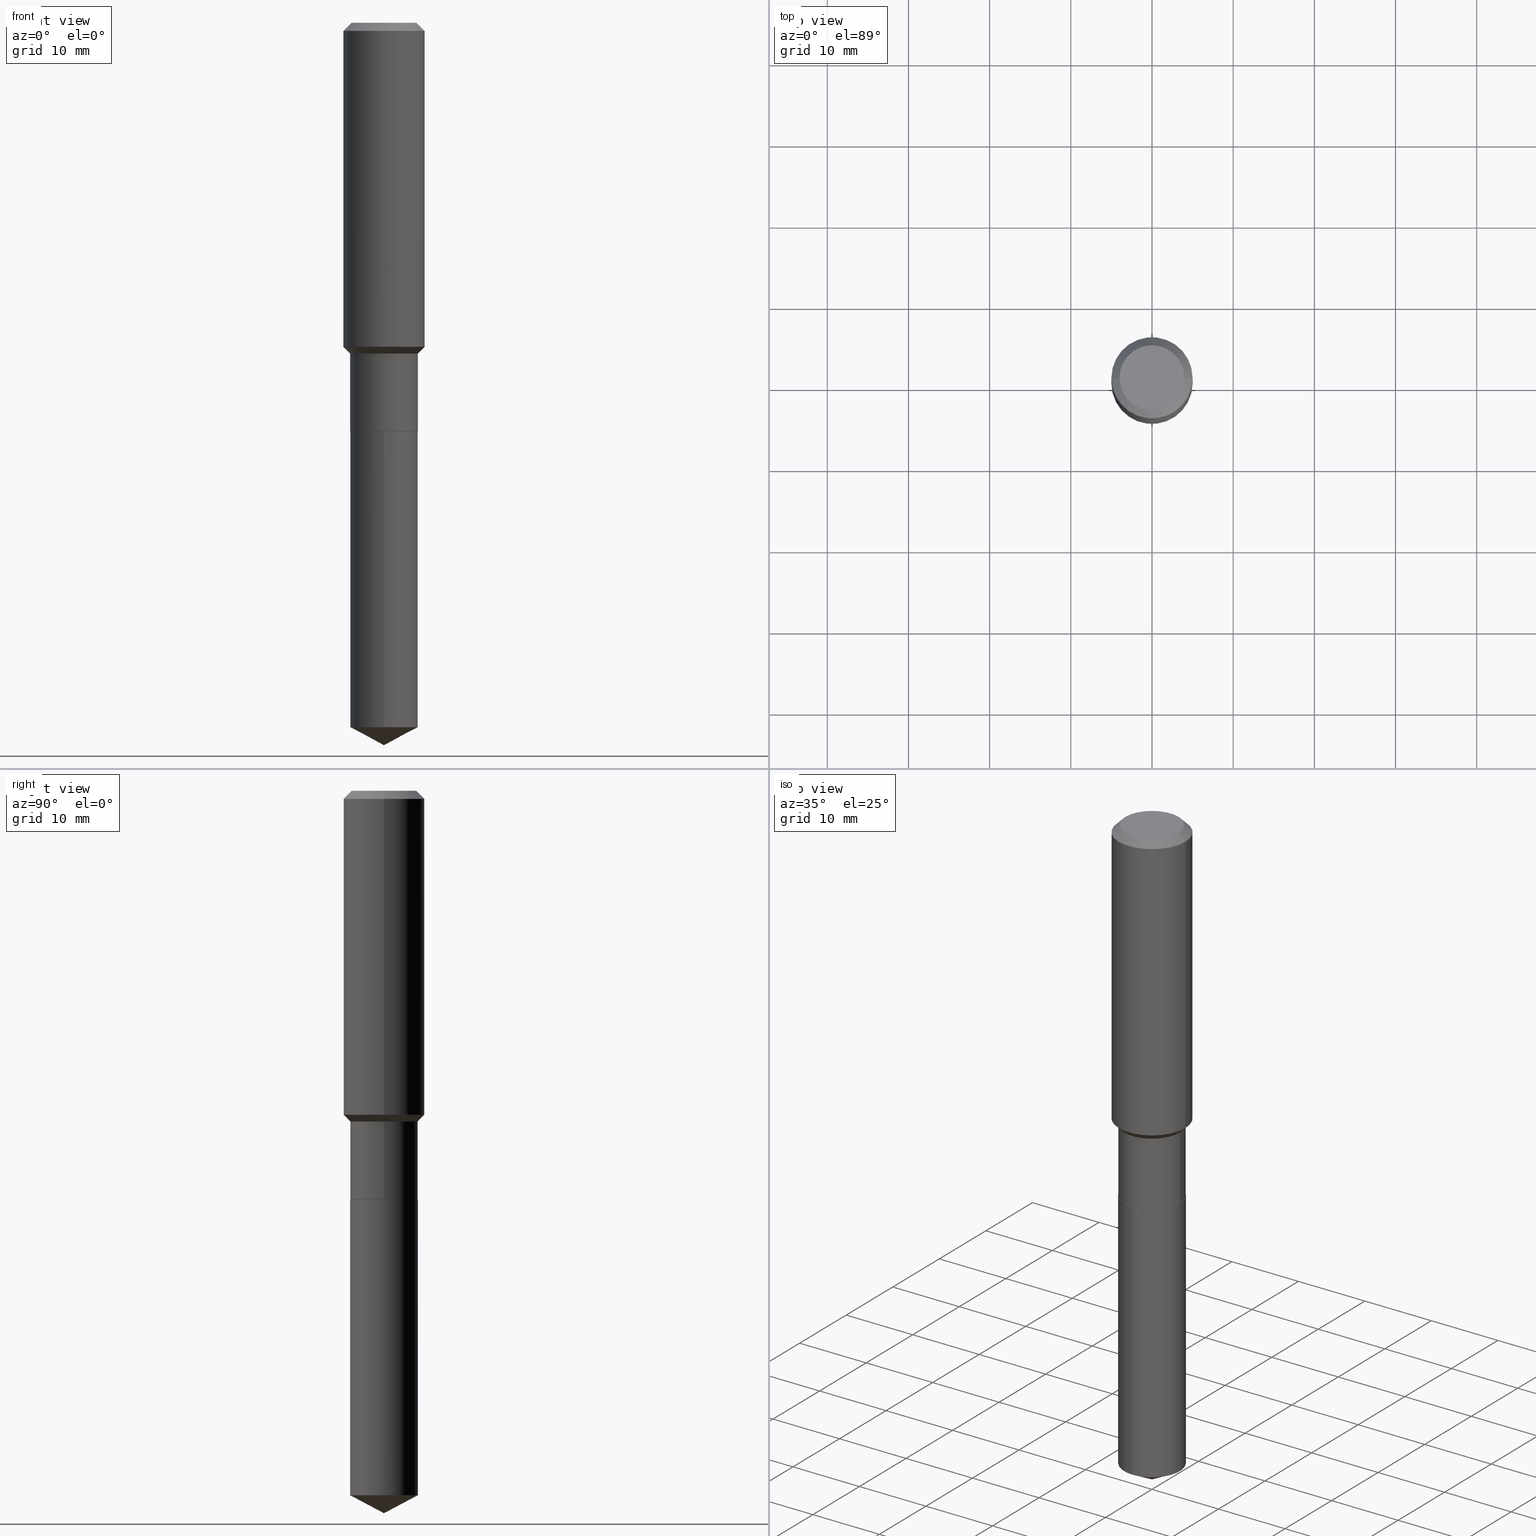
[diagram: canonical four-view strip — front | top / right | iso, engineering-drawing reading convention]
A machine part, canonical four-view strip (front | top / right | iso — engineering-drawing reading convention). The complete STEP part file that produces these views, byte-faithful:
ISO-10303-21;
HEADER;
FILE_DESCRIPTION (( 'STEP AP203' ),
    '1' );
FILE_NAME ('54616.STEP',
    '2024-04-24T15:08:47',
    ( '' ),
    ( '' ),
    'SwSTEP 2.0',
    'SolidWorks 2023',
    '' );
FILE_SCHEMA (( 'CONFIG_CONTROL_DESIGN' ));
ENDSEC;

DATA;
#1 = DIRECTION ( 'NONE',  ( -2.445609389385377886E-29, 3.491280015698900984E-15, 1.000000000000000000 ) ) ;
#2 = CIRCLE ( 'NONE', #350, 0.1968500000000001915 ) ;
#3 = ORIENTED_EDGE ( 'NONE', *, *, #381, .F. ) ;
#4 = VERTEX_POINT ( 'NONE', #327 ) ;
#5 = CC_DESIGN_PERSON_AND_ORGANIZATION_ASSIGNMENT ( #361, #55, ( #130 ) ) ;
#6 = DIRECTION ( 'NONE',  ( -6.982962677686267499E-15, -1.000000000000000000, 3.541896320645578618E-15 ) ) ;
#7 = LINE ( 'NONE', #186, #432 ) ;
#8 = ORIENTED_EDGE ( 'NONE', *, *, #165, .T. ) ;
#9 = CARTESIAN_POINT ( 'NONE',  ( 9.627810689950950651E-31, -1.374596203102555808E-16, -0.03937000000000027283 ) ) ;
#10 = ADVANCED_FACE ( 'NONE', ( #483 ), #395, .T. ) ;
#11 = CARTESIAN_POINT ( 'NONE',  ( -0.1640500000000000014, 1.165645358014444365E-15, -8.069513015563172164E-30 ) ) ;
#12 = AXIS2_PLACEMENT_3D ( 'NONE', #193, #83, #147 ) ;
#13 = CIRCLE ( 'NONE', #360, 0.1968500000000000527 ) ;
#14 = DIRECTION ( 'NONE',  ( -2.445468806185136877E-29, 3.491481338843145188E-15, 1.000000000000000000 ) ) ;
#15 = CC_DESIGN_APPROVAL ( #60, ( #29 ) ) ;
#16 =( NAMED_UNIT ( * ) PLANE_ANGLE_UNIT ( ) SI_UNIT ( $, .RADIAN. ) );
#17 = CARTESIAN_POINT ( 'NONE',  ( 4.845940986336466171E-29, -6.918719421051576678E-15, -1.981599999999999806 ) ) ;
#18 = ORIENTED_EDGE ( 'NONE', *, *, #308, .T. ) ;
#19 = CARTESIAN_POINT ( 'NONE',  ( 1.165645358014527787E-15, 0.1640499999999880942, -3.416673067735934932 ) ) ;
#20 = CARTESIAN_POINT ( 'NONE',  ( 9.627810689950950651E-31, -1.374596203102555808E-16, -0.03937000000000027283 ) ) ;
#21 = ADVANCED_FACE ( 'NONE', ( #378 ), #258, .T. ) ;
#22 = CLOSED_SHELL ( 'NONE', ( #143, #417, #10, #49, #480 ) ) ;
#23 = AXIS2_PLACEMENT_3D ( 'NONE', #272, #48, #277 ) ;
#24 = AXIS2_PLACEMENT_3D ( 'NONE', #20, #236, #271 ) ;
#25 = CC_DESIGN_DATE_AND_TIME_ASSIGNMENT ( #323, #320, ( #29 ) ) ;
#26 = DESIGN_CONTEXT ( 'detailed design', #348, 'design' ) ;
#27 = DATE_AND_TIME ( #366, #94 ) ;
#28 = ORIENTED_EDGE ( 'NONE', *, *, #234, .F. ) ;
#29 = PRODUCT_DEFINITION ( 'UNKNOWN', '', #130, #26 ) ;
#30 = AXIS2_PLACEMENT_3D ( 'NONE', #52, #345, #387 ) ;
#31 = PERSON_AND_ORGANIZATION_ROLE ( 'creator' ) ;
#32 = VERTEX_POINT ( 'NONE', #212 ) ;
#33 = ORIENTED_EDGE ( 'NONE', *, *, #195, .F. ) ;
#34 = AXIS2_PLACEMENT_3D ( 'NONE', #112, #144, #6 ) ;
#35 = AXIS2_PLACEMENT_3D ( 'NONE', #40, #152, #304 ) ;
#36 = FACE_OUTER_BOUND ( 'NONE', #340, .T. ) ;
#37 = CARTESIAN_POINT ( 'NONE',  ( 4.844718251933373369E-29, -6.916973680382155175E-15, -1.981099999999999861 ) ) ;
#38 = ORIENTED_EDGE ( 'NONE', *, *, #133, .T. ) ;
#39 = AXIS2_PLACEMENT_3D ( 'NONE', #284, #207, #329 ) ;
#40 = CARTESIAN_POINT ( 'NONE',  ( 3.923265605762814630E-29, -5.601383511906058021E-15, -1.604299999999999837 ) ) ;
#41 = VERTEX_POINT ( 'NONE', #266 ) ;
#42 = DIMENSIONAL_EXPONENTS ( 1.000000000000000000, 0.000000000000000000, 0.000000000000000000, 0.000000000000000000, 0.000000000000000000, 0.000000000000000000, 0.000000000000000000 ) ;
#43 = ORIENTED_EDGE ( 'NONE', *, *, #150, .T. ) ;
#44 = CARTESIAN_POINT ( 'NONE',  ( 0.1640499999999999459, -6.746938539180489683E-15, -1.604299999999999837 ) ) ;
#45 = CONICAL_SURFACE ( 'NONE', #244, 0.1640499999999999459, 0.7853981633974479459 ) ;
#46 = SECURITY_CLASSIFICATION ( '', '', #481 ) ;
#47 = FACE_OUTER_BOUND ( 'NONE', #294, .T. ) ;
#48 = DIRECTION ( 'NONE',  ( 2.438088387897960049E-29, -3.491481338843145188E-15, -1.000000000000000000 ) ) ;
#49 = ADVANCED_FACE ( 'NONE', ( #286 ), #442, .T. ) ;
#50 = VERTEX_POINT ( 'NONE', #69 ) ;
#51 = DIRECTION ( 'NONE',  ( 1.000000000000000000, -6.982962677686266711E-15, 0.000000000000000000 ) ) ;
#52 = CARTESIAN_POINT ( 'NONE',  ( 4.845940986336466171E-29, -6.918719421051576678E-15, -1.981599999999999806 ) ) ;
#53 = VECTOR ( 'NONE', #307, 39.37007874015748143 ) ;
#54 = AXIS2_PLACEMENT_3D ( 'NONE', #391, #162, #471 ) ;
#55 = PERSON_AND_ORGANIZATION_ROLE ( 'design_supplier' ) ;
#56 = EDGE_CURVE ( 'NONE', #50, #4, #110, .T. ) ;
#57 = DIRECTION ( 'NONE',  ( -0.7071067811866441621, 7.493145998870704414E-15, 0.7071067811864508723 ) ) ;
#58 = VERTEX_POINT ( 'NONE', #344 ) ;
#59 = ORIENTED_EDGE ( 'NONE', *, *, #293, .T. ) ;
#60 = APPROVAL ( #322, 'UNSPECIFIED' ) ;
#61 = APPROVAL_DATE_TIME ( #169, #60 ) ;
#62 = ORIENTED_EDGE ( 'NONE', *, *, #81, .F. ) ;
#63 = CIRCLE ( 'NONE', #101, 0.1968500000000001915 ) ;
#64 = ORIENTED_EDGE ( 'NONE', *, *, #256, .T. ) ;
#65 = APPROVAL_STATUS ( 'not_yet_approved' ) ;
#66 = VERTEX_POINT ( 'NONE', #229 ) ;
#67 = EDGE_CURVE ( 'NONE', #353, #32, #383, .T. ) ;
#68 = ORIENTED_EDGE ( 'NONE', *, *, #293, .F. ) ;
#69 = CARTESIAN_POINT ( 'NONE',  ( 0.1635500000000000009, -8.060782966987165334E-15, -1.981599999999999806 ) ) ;
#70 = AXIS2_PLACEMENT_3D ( 'NONE', #373, #174, #368 ) ;
#71 = LOCAL_TIME ( 11, 8, 47.00000000000000000, #475 ) ;
#72 = EDGE_CURVE ( 'NONE', #41, #173, #372, .T. ) ;
#73 = DIRECTION ( 'NONE',  ( 1.000000000000000000, -6.982962677686265922E-15, 4.876176775795935793E-29 ) ) ;
#74 = ORIENTED_EDGE ( 'NONE', *, *, #315, .T. ) ;
#75 = DIRECTION ( 'NONE',  ( -2.445468806185136597E-29, 3.491481338843145583E-15, 1.000000000000000000 ) ) ;
#76 = ORIENTED_EDGE ( 'NONE', *, *, #487, .F. ) ;
#77 = DIRECTION ( 'NONE',  ( -2.445468806185136597E-29, 3.491481338843145583E-15, 1.000000000000000000 ) ) ;
#78 = ORIENTED_EDGE ( 'NONE', *, *, #252, .F. ) ;
#79 = CIRCLE ( 'NONE', #437, 0.1635500000000000009 ) ;
#80 = FACE_OUTER_BOUND ( 'NONE', #264, .T. ) ;
#81 = EDGE_CURVE ( 'NONE', #382, #192, #472, .T. ) ;
#82 = FACE_OUTER_BOUND ( 'NONE', #444, .T. ) ;
#83 = DIRECTION ( 'NONE',  ( -2.445468806185136597E-29, 3.491481338843145583E-15, 1.000000000000000000 ) ) ;
#84 = DIRECTION ( 'NONE',  ( -6.982962677686265133E-15, -1.000000000000000000, 3.330506545156066257E-15 ) ) ;
#85 = CARTESIAN_POINT ( 'NONE',  ( 4.845940986336466171E-29, -6.918719421051576678E-15, -1.981599999999999806 ) ) ;
#86 = ORIENTED_EDGE ( 'NONE', *, *, #474, .F. ) ;
#87 = MANIFOLD_SOLID_BREP ( 'Body-Move/Copy2[2]', #290 ) ;
#88 = ORIENTED_EDGE ( 'NONE', *, *, #133, .F. ) ;
#89 = FACE_OUTER_BOUND ( 'NONE', #232, .T. ) ;
#90 = APPROVAL ( #249, 'UNSPECIFIED' ) ;
#91 = DIRECTION ( 'NONE',  ( 0.7071067811866441621, -2.468850131083269169E-15, 0.7071067811864508723 ) ) ;
#92 = LINE ( 'NONE', #233, #275 ) ;
#93 = DIRECTION ( 'NONE',  ( -2.445609389385378166E-29, 3.491280015698900589E-15, 1.000000000000000000 ) ) ;
#94 = LOCAL_TIME ( 11, 8, 47.00000000000000000, #206 ) ;
#95 = CARTESIAN_POINT ( 'NONE',  ( -0.1640500000000000291, -5.093533238129662036E-15, -1.981099999999999861 ) ) ;
#96 = DIRECTION ( 'NONE',  ( -2.445468806185136597E-29, 3.491481338843145583E-15, 1.000000000000000000 ) ) ;
#97 = CARTESIAN_POINT ( 'NONE',  ( 0.000000000000000000, 0.000000000000000000, 0.000000000000000000 ) ) ;
#98 = LINE ( 'NONE', #473, #269 ) ;
#99 = ADVANCED_FACE ( 'NONE', ( #36 ), #291, .F. ) ;
#100 = PERSON_AND_ORGANIZATION ( #189, #191 ) ;
#101 = AXIS2_PLACEMENT_3D ( 'NONE', #313, #412, #145 ) ;
#102 = DATE_TIME_ROLE ( 'classification_date' ) ;
#103 = COORDINATED_UNIVERSAL_TIME_OFFSET ( 5, 0, .BEHIND. ) ;
#104 = PRODUCT ( '54616', '54616', '', ( #314 ) ) ;
#105 = CALENDAR_DATE ( 2024, 24, 4 ) ;
#106 = EDGE_CURVE ( 'NONE', #173, #66, #148, .T. ) ;
#107 = CARTESIAN_POINT ( 'NONE',  ( -0.1574800000000000089, 1.168406772637159815E-15, 3.855188123707939751E-18 ) ) ;
#108 = ORIENTED_EDGE ( 'NONE', *, *, #67, .T. ) ;
#109 = VERTEX_POINT ( 'NONE', #181 ) ;
#110 = CIRCLE ( 'NONE', #139, 0.1635500000000000009 ) ;
#111 = AXIS2_PLACEMENT_3D ( 'NONE', #298, #113, #408 ) ;
#112 = CARTESIAN_POINT ( 'NONE',  ( -8.771494206797295303E-28, 1.252184741330539808E-13, 35.86617874015747987 ) ) ;
#113 = DIRECTION ( 'NONE',  ( -2.445609389385377886E-29, 3.491280015698900984E-15, 1.000000000000000000 ) ) ;
#114 = CYLINDRICAL_SURFACE ( 'NONE', #362, 0.1968500000000001082 ) ;
#115 = LINE ( 'NONE', #267, #200 ) ;
#116 = CARTESIAN_POINT ( 'NONE',  ( 0.1574800000000000089, -1.284169937930321386E-15, 3.855188123724205385E-18 ) ) ;
#117 = CARTESIAN_POINT ( 'NONE',  ( -0.1640499999999999459, -5.093533238129662036E-15, -1.604299999999999837 ) ) ;
#118 = ADVANCED_FACE ( 'NONE', ( #334 ), #114, .T. ) ;
#119 = AXIS2_PLACEMENT_3D ( 'NONE', #159, #470, #273 ) ;
#120 = DIRECTION ( 'NONE',  ( 1.000000000000000000, -6.982962677686265922E-15, 0.000000000000000000 ) ) ;
#121 = CYLINDRICAL_SURFACE ( 'NONE', #184, 0.1640500000000000014 ) ;
#122 = CARTESIAN_POINT ( 'NONE',  ( 8.569175625097155873E-29, -1.223309604700737870E-14, -3.503899999999999793 ) ) ;
#123 = LINE ( 'NONE', #163, #238 ) ;
#124 = DIRECTION ( 'NONE',  ( 1.000000000000000000, -6.982962677686266711E-15, 0.000000000000000000 ) ) ;
#125 = DIRECTION ( 'NONE',  ( 1.000000000000000000, -6.982962677686266711E-15, 0.000000000000000000 ) ) ;
#126 = CC_DESIGN_PERSON_AND_ORGANIZATION_ASSIGNMENT ( #100, #243, ( #104 ) ) ;
#127 = APPROVAL_PERSON_ORGANIZATION ( #325, #90, #397 ) ;
#128 = DIRECTION ( 'NONE',  ( 1.000000000000000000, -6.982962677686266711E-15, 4.876176775795935793E-29 ) ) ;
#129 = APPROVAL_DATE_TIME ( #359, #90 ) ;
#130 = PRODUCT_DEFINITION_FORMATION_WITH_SPECIFIED_SOURCE ( 'ANY', '', #104, .NOT_KNOWN. ) ;
#131 = DATE_AND_TIME ( #105, #398 ) ;
#132 = VERTEX_POINT ( 'NONE', #336 ) ;
#133 = EDGE_CURVE ( 'NONE', #58, #402, #156, .T. ) ;
#134 = EDGE_LOOP ( 'NONE', ( #404, #68, #393, #214 ) ) ;
#135 = VERTEX_POINT ( 'NONE', #209 ) ;
#136 = EDGE_CURVE ( 'NONE', #135, #316, #7, .T. ) ;
#137 = DIRECTION ( 'NONE',  ( -6.982962677686265133E-15, -1.000000000000000000, 3.330506545156066257E-15 ) ) ;
#138 = AXIS2_PLACEMENT_3D ( 'NONE', #171, #288, #137 ) ;
#139 = AXIS2_PLACEMENT_3D ( 'NONE', #410, #414, #457 ) ;
#140 =( GEOMETRIC_REPRESENTATION_CONTEXT ( 3 ) GLOBAL_UNCERTAINTY_ASSIGNED_CONTEXT ( ( #241 ) ) GLOBAL_UNIT_ASSIGNED_CONTEXT ( ( #462, #16, #306 ) ) REPRESENTATION_CONTEXT ( 'NONE', 'WORKASPACE' ) );
#141 = EDGE_LOOP ( 'NONE', ( #380, #367, #62, #211 ) ) ;
#142 = FACE_OUTER_BOUND ( 'NONE', #134, .T. ) ;
#143 = ADVANCED_FACE ( 'NONE', ( #80 ), #121, .T. ) ;
#144 = DIRECTION ( 'NONE',  ( -2.445609389385377886E-29, 3.491280015698900984E-15, 1.000000000000000000 ) ) ;
#145 = DIRECTION ( 'NONE',  ( 1.000000000000000000, -6.982962677686266711E-15, 0.000000000000000000 ) ) ;
#146 = AXIS2_PLACEMENT_3D ( 'NONE', #85, #190, #349 ) ;
#147 = DIRECTION ( 'NONE',  ( 1.000000000000000000, -6.982962677686265922E-15, 0.000000000000000000 ) ) ;
#148 = LINE ( 'NONE', #301, #227 ) ;
#149 = ORIENTED_EDGE ( 'NONE', *, *, #136, .F. ) ;
#150 = EDGE_CURVE ( 'NONE', #41, #109, #386, .T. ) ;
#151 = CARTESIAN_POINT ( 'NONE',  ( 0.000000000000000000, 0.000000000000000000, 0.000000000000000000 ) ) ;
#152 = DIRECTION ( 'NONE',  ( -2.445468806185136597E-29, 3.491481338843145583E-15, 1.000000000000000000 ) ) ;
#153 = ORIENTED_EDGE ( 'NONE', *, *, #213, .F. ) ;
#154 =( LENGTH_UNIT ( ) NAMED_UNIT ( * ) SI_UNIT ( $, .METRE. ) );
#155 = APPROVAL ( #65, 'UNSPECIFIED' ) ;
#156 = CIRCLE ( 'NONE', #379, 0.1640500000000000014 ) ;
#157 = AXIS2_PLACEMENT_3D ( 'NONE', #455, #222, #262 ) ;
#158 = PLANE ( 'NONE',  #23 ) ;
#159 = CARTESIAN_POINT ( 'NONE',  ( 3.923265605762814630E-29, -5.601383511906058021E-15, -1.604299999999999837 ) ) ;
#160 = EDGE_LOOP ( 'NONE', ( #224, #302, #257 ) ) ;
#161 = CC_DESIGN_PERSON_AND_ORGANIZATION_ASSIGNMENT ( #280, #31, ( #29 ) ) ;
#162 = DIRECTION ( 'NONE',  ( 0.000000000000000000, 0.000000000000000000, 1.000000000000000000 ) ) ;
#163 = CARTESIAN_POINT ( 'NONE',  ( -0.1968500000000001082, 1.398703375343757985E-15, -9.682923725166787881E-30 ) ) ;
#164 = VECTOR ( 'NONE', #425, 39.37007874015748143 ) ;
#165 = EDGE_CURVE ( 'NONE', #66, #109, #2, .T. ) ;
#166 = CALENDAR_DATE ( 2024, 24, 4 ) ;
#167 = APPLICATION_PROTOCOL_DEFINITION ( 'international standard', 'config_control_design', 1994, #348 ) ;
#168 = LINE ( 'NONE', #364, #447 ) ;
#169 = DATE_AND_TIME ( #166, #71 ) ;
#170 = ORIENTED_EDGE ( 'NONE', *, *, #399, .T. ) ;
#171 = CARTESIAN_POINT ( 'NONE',  ( 4.845940986336466171E-29, -6.918719421051576678E-15, -1.981599999999999806 ) ) ;
#172 = APPROVAL_ROLE ( '' ) ;
#173 = VERTEX_POINT ( 'NONE', #117 ) ;
#174 = DIRECTION ( 'NONE',  ( -2.445468806185136597E-29, 3.491481338843145583E-15, 1.000000000000000000 ) ) ;
#175 = ORIENTED_EDGE ( 'NONE', *, *, #106, .T. ) ;
#176 = EDGE_CURVE ( 'NONE', #4, #50, #79, .T. ) ;
#177 = CARTESIAN_POINT ( 'NONE',  ( -9.427742298522567634E-47, 1.346031739168368355E-32, 3.855188123715870730E-18 ) ) ;
#178 = CARTESIAN_POINT ( 'NONE',  ( 1.165645358014492485E-15, 0.1640499999999930625, -1.981600000000000250 ) ) ;
#179 = CONICAL_SURFACE ( 'NONE', #12, 0.1635500000000000009, 0.7853981633975849475 ) ;
#180 = LOCAL_TIME ( 11, 8, 47.00000000000000000, #289 ) ;
#181 = CARTESIAN_POINT ( 'NONE',  ( 0.1968500000000001915, -6.861459127094544262E-15, -1.571499999999999675 ) ) ;
#182 = DIRECTION ( 'NONE',  ( -2.445468806185136597E-29, 3.491481338843145583E-15, 1.000000000000000000 ) ) ;
#183 = DIRECTION ( 'NONE',  ( -1.000000000000000000, 6.982962677686266711E-15, 0.000000000000000000 ) ) ;
#184 = AXIS2_PLACEMENT_3D ( 'NONE', #342, #305, #84 ) ;
#185 = EDGE_CURVE ( 'NONE', #173, #41, #309, .T. ) ;
#186 = CARTESIAN_POINT ( 'NONE',  ( 8.568613580128229190E-29, -1.223389393089264795E-14, -3.503899999999999793 ) ) ;
#187 = FACE_OUTER_BOUND ( 'NONE', #230, .T. ) ;
#188 = CARTESIAN_POINT ( 'NONE',  ( -1.145555027274348438E-15, -0.1640500000000119085, -3.416673067735933600 ) ) ;
#189 = PERSON ( 'UNSPECIFIED', 'UNSPECIFIED', 'UNSPECIFIED', ('UNSPECIFIED'), ('UNSPECIFIED'), ('UNSPECIFIED') ) ;
#190 = DIRECTION ( 'NONE',  ( -2.445609389385377886E-29, 3.491280015698900984E-15, 1.000000000000000000 ) ) ;
#191 = ORGANIZATION ( 'UNSPECIFIED', 'UNSPECIFIED', '' ) ;
#192 = VERTEX_POINT ( 'NONE', #95 ) ;
#193 = CARTESIAN_POINT ( 'NONE',  ( 4.845940986336466171E-29, -6.918719421051576678E-15, -1.981599999999999806 ) ) ;
#194 = DIRECTION ( 'NONE',  ( 0.7071067811865472397, -2.468850131082253905E-15, 0.7071067811865477948 ) ) ;
#195 = EDGE_CURVE ( 'NONE', #4, #192, #239, .T. ) ;
#196 = DIRECTION ( 'NONE',  ( -2.445468806185136597E-29, 3.491481338843145583E-15, 1.000000000000000000 ) ) ;
#197 = EDGE_LOOP ( 'NONE', ( #78, #452, #285, #235 ) ) ;
#198 = PERSON_AND_ORGANIZATION ( #189, #191 ) ;
#199 = EDGE_CURVE ( 'NONE', #446, #316, #405, .T. ) ;
#200 = VECTOR ( 'NONE', #93, 39.37007874015748143 ) ;
#201 = AXIS2_PLACEMENT_3D ( 'NONE', #392, #318, #356 ) ;
#202 = PERSON_AND_ORGANIZATION ( #189, #191 ) ;
#203 = EDGE_CURVE ( 'NONE', #446, #402, #370, .T. ) ;
#204 = CALENDAR_DATE ( 2024, 24, 4 ) ;
#205 = ORIENTED_EDGE ( 'NONE', *, *, #176, .T. ) ;
#206 = COORDINATED_UNIVERSAL_TIME_OFFSET ( 5, 0, .BEHIND. ) ;
#207 = DIRECTION ( 'NONE',  ( -2.445609389385377886E-29, 3.491280015698900984E-15, 1.000000000000000000 ) ) ;
#208 = EDGE_LOOP ( 'NONE', ( #59, #74 ) ) ;
#209 = CARTESIAN_POINT ( 'NONE',  ( 8.569170739467425563E-29, -1.223309604700737870E-14, -3.503899999999999793 ) ) ;
#210 = DIRECTION ( 'NONE',  ( -2.445468806185136597E-29, 3.491481338843145583E-15, 1.000000000000000000 ) ) ;
#211 = ORIENTED_EDGE ( 'NONE', *, *, #435, .F. ) ;
#212 = CARTESIAN_POINT ( 'NONE',  ( 0.1968500000000000527, -1.512055823412797583E-15, -0.03937000000000027283 ) ) ;
#213 = EDGE_CURVE ( 'NONE', #192, #382, #396, .T. ) ;
#214 = ORIENTED_EDGE ( 'NONE', *, *, #487, .T. ) ;
#215 = CIRCLE ( 'NONE', #146, 0.1640500000000000014 ) ;
#216 = CONICAL_SURFACE ( 'NONE', #24, 0.1968500000000000527, 0.7853981633974453924 ) ;
#217 = ORIENTED_EDGE ( 'NONE', *, *, #365, .F. ) ;
#218 = DIRECTION ( 'NONE',  ( -0.7071067811865472397, 7.493145998870354160E-15, 0.7071067811865477948 ) ) ;
#219 = DIRECTION ( 'NONE',  ( -2.445468806185136597E-29, 3.491481338843145583E-15, 1.000000000000000000 ) ) ;
#220 = ORIENTED_EDGE ( 'NONE', *, *, #388, .T. ) ;
#221 = EDGE_LOOP ( 'NONE', ( #477, #441, #406, #278 ) ) ;
#222 = DIRECTION ( 'NONE',  ( -2.445468806185136597E-29, 3.491481338843145583E-15, 1.000000000000000000 ) ) ;
#223 = EDGE_CURVE ( 'NONE', #402, #58, #215, .T. ) ;
#224 = ORIENTED_EDGE ( 'NONE', *, *, #256, .F. ) ;
#225 = DIRECTION ( 'NONE',  ( -6.165590087286827352E-15, -0.8829475928589254341, 0.4694715627858938034 ) ) ;
#226 = ORIENTED_EDGE ( 'NONE', *, *, #308, .F. ) ;
#227 = VECTOR ( 'NONE', #218, 39.37007874015748143 ) ;
#228 = CIRCLE ( 'NONE', #454, 0.1968500000000000527 ) ;
#229 = CARTESIAN_POINT ( 'NONE',  ( -0.1968500000000001915, -4.088159548648243288E-15, -1.571499999999999675 ) ) ;
#230 = EDGE_LOOP ( 'NONE', ( #467, #374, #333, #86 ) ) ;
#231 = DIRECTION ( 'NONE',  ( -2.445468806185136597E-29, 3.491481338843145583E-15, 1.000000000000000000 ) ) ;
#232 = EDGE_LOOP ( 'NONE', ( #363, #424, #43, #450 ) ) ;
#233 = CARTESIAN_POINT ( 'NONE',  ( 0.1640500000000000014, -1.145555027274432057E-15, 7.999368000693231542E-30 ) ) ;
#234 = EDGE_CURVE ( 'NONE', #109, #66, #63, .T. ) ;
#235 = ORIENTED_EDGE ( 'NONE', *, *, #185, .F. ) ;
#236 = DIRECTION ( 'NONE',  ( 2.445468806185136597E-29, -3.491481338843145583E-15, -1.000000000000000000 ) ) ;
#237 = AXIS2_PLACEMENT_3D ( 'NONE', #151, #419, #303 ) ;
#238 = VECTOR ( 'NONE', #394, 39.37007874015748143 ) ;
#239 = LINE ( 'NONE', #245, #479 ) ;
#240 = CARTESIAN_POINT ( 'NONE',  ( 0.1635500000000000009, -8.060782966987165334E-15, -1.981599999999999806 ) ) ;
#241 = UNCERTAINTY_MEASURE_WITH_UNIT (LENGTH_MEASURE( 1.000000000000000082E-05 ), #462, 'distance_accuracy_value', 'NONE');
#242 = DIRECTION ( 'NONE',  ( -2.445468806185136877E-29, 3.491481338843145188E-15, 1.000000000000000000 ) ) ;
#243 = PERSON_AND_ORGANIZATION_ROLE ( 'design_owner' ) ;
#244 = AXIS2_PLACEMENT_3D ( 'NONE', #440, #219, #376 ) ;
#245 = CARTESIAN_POINT ( 'NONE',  ( -0.1635500000000000009, -5.756626776715933015E-15, -1.981599999999999806 ) ) ;
#246 = ADVANCED_FACE ( 'NONE', ( #456 ), #179, .T. ) ;
#247 = EDGE_LOOP ( 'NONE', ( #33, #205, #310, #153 ) ) ;
#248 = CC_DESIGN_DATE_AND_TIME_ASSIGNMENT ( #131, #102, ( #46 ) ) ;
#249 = APPROVAL_STATUS ( 'not_yet_approved' ) ;
#250 = AXIS2_PLACEMENT_3D ( 'NONE', #37, #251, #328 ) ;
#251 = DIRECTION ( 'NONE',  ( -2.445468806185136597E-29, 3.491481338843145583E-15, 1.000000000000000000 ) ) ;
#252 = EDGE_CURVE ( 'NONE', #192, #173, #265, .T. ) ;
#253 = ORIENTED_EDGE ( 'NONE', *, *, #384, .F. ) ;
#254 = ORIENTED_EDGE ( 'NONE', *, *, #381, .T. ) ;
#255 = DIRECTION ( 'NONE',  ( -2.438088387897960049E-29, 3.491481338843145188E-15, 1.000000000000000000 ) ) ;
#256 = EDGE_CURVE ( 'NONE', #135, #446, #343, .T. ) ;
#257 = ORIENTED_EDGE ( 'NONE', *, *, #199, .F. ) ;
#258 = CONICAL_SURFACE ( 'NONE', #463, 0.1635500000000000009, 0.7853981633975849475 ) ;
#259 = VECTOR ( 'NONE', #418, 39.37007874015748143 ) ;
#260 = ORIENTED_EDGE ( 'NONE', *, *, #315, .F. ) ;
#261 = DIRECTION ( 'NONE',  ( 2.445468806185136597E-29, -3.491481338843145583E-15, -1.000000000000000000 ) ) ;
#262 = DIRECTION ( 'NONE',  ( 1.000000000000000000, -6.982962677686265922E-15, 4.876223630392693006E-29 ) ) ;
#263 = CARTESIAN_POINT ( 'NONE',  ( 4.844718251933373369E-29, -6.916973680382155175E-15, -1.981099999999999861 ) ) ;
#264 = EDGE_LOOP ( 'NONE', ( #18, #337, #88, #217 ) ) ;
#265 = LINE ( 'NONE', #11, #259 ) ;
#266 = CARTESIAN_POINT ( 'NONE',  ( 0.1640499999999999459, -6.746938539180489683E-15, -1.604299999999999837 ) ) ;
#267 = CARTESIAN_POINT ( 'NONE',  ( -1.145555027274383345E-15, -0.1640500000000069125, -1.981599999999999140 ) ) ;
#268 = ADVANCED_FACE ( 'NONE', ( #89 ), #45, .T. ) ;
#269 = VECTOR ( 'NONE', #422, 39.37007874015748143 ) ;
#270 = DIRECTION ( 'NONE',  ( -2.445468806185136597E-29, 3.491481338843145583E-15, 1.000000000000000000 ) ) ;
#271 = DIRECTION ( 'NONE',  ( -1.000000000000000000, 6.982962677686266711E-15, 0.000000000000000000 ) ) ;
#272 = CARTESIAN_POINT ( 'NONE',  ( -4.713871149261283817E-47, 6.730158695841841775E-33, 1.927594061857935365E-18 ) ) ;
#273 = DIRECTION ( 'NONE',  ( 1.000000000000000000, -6.982962677686266711E-15, 0.000000000000000000 ) ) ;
#274 = EDGE_LOOP ( 'NONE', ( #400, #8, #254, #76 ) ) ;
#275 = VECTOR ( 'NONE', #242, 39.37007874015748143 ) ;
#276 = ADVANCED_FACE ( 'NONE', ( #142 ), #324, .T. ) ;
#277 = DIRECTION ( 'NONE',  ( -1.000000000000000000, 6.982962677686265922E-15, -4.876176775795935793E-29 ) ) ;
#278 = ORIENTED_EDGE ( 'NONE', *, *, #223, .F. ) ;
#279 = LINE ( 'NONE', #240, #292 ) ;
#280 = PERSON_AND_ORGANIZATION ( #189, #191 ) ;
#281 = SHAPE_DEFINITION_REPRESENTATION ( #429, #448 ) ;
#282 = AXIS2_PLACEMENT_3D ( 'NONE', #375, #255, #73 ) ;
#283 = DIRECTION ( 'NONE',  ( 0.7071067811865454633, -7.319954787623248157E-15, -0.7071067811865495711 ) ) ;
#284 = CARTESIAN_POINT ( 'NONE',  ( 8.355569155245545559E-29, -1.192896134350575963E-14, -3.416673067735934044 ) ) ;
#285 = ORIENTED_EDGE ( 'NONE', *, *, #474, .T. ) ;
#286 = FACE_OUTER_BOUND ( 'NONE', #221, .T. ) ;
#287 = PERSON_AND_ORGANIZATION ( #189, #191 ) ;
#288 = DIRECTION ( 'NONE',  ( -2.445609389385377886E-29, 3.491280015698900984E-15, 1.000000000000000000 ) ) ;
#289 = COORDINATED_UNIVERSAL_TIME_OFFSET ( 5, 0, .BEHIND. ) ;
#290 = CLOSED_SHELL ( 'NONE', ( #246, #476, #427, #295, #321, #354, #268, #118, #276, #300, #99, #21 ) ) ;
#291 = PLANE ( 'NONE',  #282 ) ;
#292 = VECTOR ( 'NONE', #91, 39.37007874015748143 ) ;
#293 = EDGE_CURVE ( 'NONE', #296, #353, #484, .T. ) ;
#294 = EDGE_LOOP ( 'NONE', ( #260, #108, #220, #253 ) ) ;
#295 = ADVANCED_FACE ( 'NONE', ( #415 ), #439, .T. ) ;
#296 = VERTEX_POINT ( 'NONE', #107 ) ;
#297 = DIRECTION ( 'NONE',  ( -6.982962677686265133E-15, -1.000000000000000000, 3.330506545156066257E-15 ) ) ;
#298 = CARTESIAN_POINT ( 'NONE',  ( 8.355569155245545559E-29, -1.192896134350575963E-14, -3.416673067735934044 ) ) ;
#299 = CARTESIAN_POINT ( 'NONE',  ( 9.627810689950950651E-31, -1.374596203102555808E-16, -0.03937000000000027283 ) ) ;
#300 = ADVANCED_FACE ( 'NONE', ( #421 ), #158, .F. ) ;
#301 = CARTESIAN_POINT ( 'NONE',  ( -0.1640499999999999459, -4.435738153891613459E-15, -1.604299999999999837 ) ) ;
#302 = ORIENTED_EDGE ( 'NONE', *, *, #136, .T. ) ;
#303 = DIRECTION ( 'NONE',  ( 1.000000000000000000, -6.982962677686266711E-15, 4.876176775795935232E-29 ) ) ;
#304 = DIRECTION ( 'NONE',  ( 1.000000000000000000, -6.982962677686266711E-15, 0.000000000000000000 ) ) ;
#305 = DIRECTION ( 'NONE',  ( -2.445609389385377886E-29, 3.491280015698900984E-15, 1.000000000000000000 ) ) ;
#306 =( NAMED_UNIT ( * ) SI_UNIT ( $, .STERADIAN. ) SOLID_ANGLE_UNIT ( ) );
#307 = DIRECTION ( 'NONE',  ( -2.445609389385378166E-29, 3.491280015698900589E-15, 1.000000000000000000 ) ) ;
#308 = EDGE_CURVE ( 'NONE', #316, #446, #464, .T. ) ;
#309 = CIRCLE ( 'NONE', #119, 0.1640499999999999459 ) ;
#310 = ORIENTED_EDGE ( 'NONE', *, *, #435, .T. ) ;
#311 = CC_DESIGN_APPROVAL ( #90, ( #130 ) ) ;
#312 = DIRECTION ( 'NONE',  ( -2.445468806185136597E-29, 3.491481338843145583E-15, 1.000000000000000000 ) ) ;
#313 = CARTESIAN_POINT ( 'NONE',  ( 3.843054228919941314E-29, -5.486862923992002653E-15, -1.571499999999999675 ) ) ;
#314 = MECHANICAL_CONTEXT ( 'NONE', #469, 'mechanical' ) ;
#315 = EDGE_CURVE ( 'NONE', #353, #296, #389, .T. ) ;
#316 = VERTEX_POINT ( 'NONE', #188 ) ;
#317 = AXIS2_PLACEMENT_3D ( 'NONE', #263, #231, #423 ) ;
#318 = DIRECTION ( 'NONE',  ( -2.445609389385377886E-29, 3.491280015698900984E-15, 1.000000000000000000 ) ) ;
#319 = CC_DESIGN_APPROVAL ( #155, ( #46 ) ) ;
#320 = DATE_TIME_ROLE ( 'creation_date' ) ;
#321 = ADVANCED_FACE ( 'NONE', ( #187 ), #458, .T. ) ;
#322 = APPROVAL_STATUS ( 'not_yet_approved' ) ;
#323 = DATE_AND_TIME ( #326, #351 ) ;
#324 = CONICAL_SURFACE ( 'NONE', #358, 0.1968500000000000527, 0.7853981633974453924 ) ;
#325 = PERSON_AND_ORGANIZATION ( #189, #191 ) ;
#326 = CALENDAR_DATE ( 2024, 24, 4 ) ;
#327 = CARTESIAN_POINT ( 'NONE',  ( -0.1635500000000000009, -5.753977549541821814E-15, -1.981599999999999806 ) ) ;
#328 = DIRECTION ( 'NONE',  ( 1.000000000000000000, -6.982962677686269077E-15, 0.000000000000000000 ) ) ;
#329 = DIRECTION ( 'NONE',  ( -6.982962677686265133E-15, -1.000000000000000000, 3.330506545156066257E-15 ) ) ;
#330 = EDGE_LOOP ( 'NONE', ( #357, #175, #28, #413 ) ) ;
#331 = AXIS2_PLACEMENT_3D ( 'NONE', #338, #77, #460 ) ;
#332 = APPROVAL_PERSON_ORGANIZATION ( #287, #60, #443 ) ;
#333 = ORIENTED_EDGE ( 'NONE', *, *, #72, .F. ) ;
#334 = FACE_OUTER_BOUND ( 'NONE', #274, .T. ) ;
#335 = CARTESIAN_POINT ( 'NONE',  ( 0.1640500000000000291, -8.062528707656587626E-15, -1.981099999999999861 ) ) ;
#336 = CARTESIAN_POINT ( 'NONE',  ( -0.1968500000000000527, -1.413457896807370738E-15, -0.03937000000000027283 ) ) ;
#337 = ORIENTED_EDGE ( 'NONE', *, *, #203, .T. ) ;
#338 = CARTESIAN_POINT ( 'NONE',  ( 0.000000000000000000, 0.000000000000000000, 0.000000000000000000 ) ) ;
#339 = VECTOR ( 'NONE', #283, 39.37007874015748143 ) ;
#340 = EDGE_LOOP ( 'NONE', ( #482, #377 ) ) ;
#341 = CARTESIAN_POINT ( 'NONE',  ( 4.845940986336466171E-29, -6.918719421051576678E-15, -1.981599999999999806 ) ) ;
#342 = CARTESIAN_POINT ( 'NONE',  ( 4.845940986336466171E-29, -6.918719421051576678E-15, -1.981599999999999806 ) ) ;
#343 = LINE ( 'NONE', #122, #164 ) ;
#344 = CARTESIAN_POINT ( 'NONE',  ( -1.145555027274383345E-15, -0.1640500000000069125, -1.981599999999999140 ) ) ;
#345 = DIRECTION ( 'NONE',  ( 2.445609389385377886E-29, -3.491280015698900589E-15, -1.000000000000000000 ) ) ;
#346 = EDGE_LOOP ( 'NONE', ( #149, #64, #226 ) ) ;
#347 = CARTESIAN_POINT ( 'NONE',  ( 1.165645358014527787E-15, 0.1640499999999930625, -1.981600000000000250 ) ) ;
#348 = APPLICATION_CONTEXT ( 'configuration controlled 3d designs of mechanical parts and assemblies' ) ;
#349 = DIRECTION ( 'NONE',  ( -6.982962677686265133E-15, -1.000000000000000000, 3.330506545156066257E-15 ) ) ;
#350 = AXIS2_PLACEMENT_3D ( 'NONE', #459, #312, #125 ) ;
#351 = LOCAL_TIME ( 11, 8, 47.00000000000000000, #401 ) ;
#352 = LENGTH_MEASURE_WITH_UNIT ( LENGTH_MEASURE( 0.02539999999999999897 ), #154 );
#353 = VERTEX_POINT ( 'NONE', #116 ) ;
#354 = ADVANCED_FACE ( 'NONE', ( #461 ), #466, .T. ) ;
#355 = FACE_OUTER_BOUND ( 'NONE', #346, .T. ) ;
#356 = DIRECTION ( 'NONE',  ( -6.982962677686267499E-15, -1.000000000000000000, 3.541896320645578618E-15 ) ) ;
#357 = ORIENTED_EDGE ( 'NONE', *, *, #72, .T. ) ;
#358 = AXIS2_PLACEMENT_3D ( 'NONE', #299, #261, #183 ) ;
#359 = DATE_AND_TIME ( #204, #180 ) ;
#360 = AXIS2_PLACEMENT_3D ( 'NONE', #9, #270, #124 ) ;
#361 = PERSON_AND_ORGANIZATION ( #189, #191 ) ;
#362 = AXIS2_PLACEMENT_3D ( 'NONE', #489, #182, #449 ) ;
#363 = ORIENTED_EDGE ( 'NONE', *, *, #106, .F. ) ;
#364 = CARTESIAN_POINT ( 'NONE',  ( 0.1968500000000001082, -1.374596203102542397E-15, 9.598753983154305062E-30 ) ) ;
#365 = EDGE_CURVE ( 'NONE', #316, #58, #115, .T. ) ;
#366 = CALENDAR_DATE ( 2024, 24, 4 ) ;
#367 = ORIENTED_EDGE ( 'NONE', *, *, #195, .T. ) ;
#368 = DIRECTION ( 'NONE',  ( 1.000000000000000000, -6.982962677686266711E-15, 0.000000000000000000 ) ) ;
#369 = DIRECTION ( 'NONE',  ( 1.000000000000000000, -6.982962677686265922E-15, 4.876223630392693006E-29 ) ) ;
#370 = LINE ( 'NONE', #178, #53 ) ;
#371 = CARTESIAN_POINT ( 'NONE',  ( 0.1968500000000000527, -1.487948651171581996E-15, -0.03937000000000027283 ) ) ;
#372 = CIRCLE ( 'NONE', #70, 0.1640499999999999459 ) ;
#373 = CARTESIAN_POINT ( 'NONE',  ( 3.923265605762814630E-29, -5.601383511906058021E-15, -1.604299999999999837 ) ) ;
#374 = ORIENTED_EDGE ( 'NONE', *, *, #252, .T. ) ;
#375 = CARTESIAN_POINT ( 'NONE',  ( 4.845940986336466171E-29, -6.918719421051576678E-15, -1.981599999999999806 ) ) ;
#376 = DIRECTION ( 'NONE',  ( 1.000000000000000000, -6.982962677686266711E-15, 0.000000000000000000 ) ) ;
#377 = ORIENTED_EDGE ( 'NONE', *, *, #176, .F. ) ;
#378 = FACE_OUTER_BOUND ( 'NONE', #247, .T. ) ;
#379 = AXIS2_PLACEMENT_3D ( 'NONE', #409, #1, #297 ) ;
#380 = ORIENTED_EDGE ( 'NONE', *, *, #56, .T. ) ;
#381 = EDGE_CURVE ( 'NONE', #109, #32, #168, .T. ) ;
#382 = VERTEX_POINT ( 'NONE', #335 ) ;
#383 = LINE ( 'NONE', #371, #339 ) ;
#384 = EDGE_CURVE ( 'NONE', #296, #132, #98, .T. ) ;
#385 = FACE_OUTER_BOUND ( 'NONE', #488, .T. ) ;
#386 = LINE ( 'NONE', #44, #411 ) ;
#387 = DIRECTION ( 'NONE',  ( 6.982962677686265922E-15, 1.000000000000000000, -3.491280015698900589E-15 ) ) ;
#388 = EDGE_CURVE ( 'NONE', #32, #132, #228, .T. ) ;
#389 = CIRCLE ( 'NONE', #453, 0.1574800000000000089 ) ;
#390 = AXIS2_PLACEMENT_3D ( 'NONE', #97, #96, #128 ) ;
#391 = CARTESIAN_POINT ( 'NONE',  ( 0.000000000000000000, 0.000000000000000000, 0.000000000000000000 ) ) ;
#392 = CARTESIAN_POINT ( 'NONE',  ( -8.771494206797295303E-28, 1.252184741330539808E-13, 35.86617874015747987 ) ) ;
#393 = ORIENTED_EDGE ( 'NONE', *, *, #384, .T. ) ;
#394 = DIRECTION ( 'NONE',  ( -2.445468806185136877E-29, 3.491481338843145188E-15, 1.000000000000000000 ) ) ;
#395 = CONICAL_SURFACE ( 'NONE', #34, 74.04434902938317009, 1.082104136236484493 ) ;
#396 = CIRCLE ( 'NONE', #317, 0.1640500000000000291 ) ;
#397 = APPROVAL_ROLE ( '' ) ;
#398 = LOCAL_TIME ( 11, 8, 47.00000000000000000, #103 ) ;
#399 = EDGE_CURVE ( 'NONE', #66, #132, #123, .T. ) ;
#400 = ORIENTED_EDGE ( 'NONE', *, *, #399, .F. ) ;
#401 = COORDINATED_UNIVERSAL_TIME_OFFSET ( 5, 0, .BEHIND. ) ;
#402 = VERTEX_POINT ( 'NONE', #347 ) ;
#403 = PERSON_AND_ORGANIZATION_ROLE ( 'creator' ) ;
#404 = ORIENTED_EDGE ( 'NONE', *, *, #67, .F. ) ;
#405 = CIRCLE ( 'NONE', #39, 0.1640500000000000014 ) ;
#406 = ORIENTED_EDGE ( 'NONE', *, *, #365, .T. ) ;
#407 = MANIFOLD_SOLID_BREP ( 'Body-Move/Copy2[1]', #22 ) ;
#408 = DIRECTION ( 'NONE',  ( -6.982962677686265133E-15, -1.000000000000000000, 3.330506545156066257E-15 ) ) ;
#409 = CARTESIAN_POINT ( 'NONE',  ( 4.845940986336466171E-29, -6.918719421051576678E-15, -1.981599999999999806 ) ) ;
#410 = CARTESIAN_POINT ( 'NONE',  ( 4.845940986336466171E-29, -6.918719421051576678E-15, -1.981599999999999806 ) ) ;
#411 = VECTOR ( 'NONE', #194, 39.37007874015748143 ) ;
#412 = DIRECTION ( 'NONE',  ( -2.445468806185136597E-29, 3.491481338843145583E-15, 1.000000000000000000 ) ) ;
#413 = ORIENTED_EDGE ( 'NONE', *, *, #150, .F. ) ;
#414 = DIRECTION ( 'NONE',  ( -2.445468806185136597E-29, 3.491481338843145583E-15, 1.000000000000000000 ) ) ;
#415 = FACE_OUTER_BOUND ( 'NONE', #330, .T. ) ;
#416 = DIRECTION ( 'NONE',  ( -2.445468806185136597E-29, 3.491481338843145583E-15, 1.000000000000000000 ) ) ;
#417 = ADVANCED_FACE ( 'NONE', ( #355 ), #485, .T. ) ;
#418 = DIRECTION ( 'NONE',  ( -2.445468806185136877E-29, 3.491481338843145188E-15, 1.000000000000000000 ) ) ;
#419 = DIRECTION ( 'NONE',  ( -2.445468806185136597E-29, 3.491481338843145583E-15, 1.000000000000000000 ) ) ;
#420 = ORIENTED_EDGE ( 'NONE', *, *, #388, .F. ) ;
#421 = FACE_OUTER_BOUND ( 'NONE', #208, .T. ) ;
#422 = DIRECTION ( 'NONE',  ( -0.7071067811865454633, 2.468850131082235367E-15, -0.7071067811865495711 ) ) ;
#423 = DIRECTION ( 'NONE',  ( 1.000000000000000000, -6.982962677686269077E-15, 0.000000000000000000 ) ) ;
#424 = ORIENTED_EDGE ( 'NONE', *, *, #185, .T. ) ;
#425 = DIRECTION ( 'NONE',  ( 6.273719981627758188E-15, 0.8829475928589286537, 0.4694715627858875306 ) ) ;
#426 = APPLICATION_PROTOCOL_DEFINITION ( 'international standard', 'config_control_design', 1994, #469 ) ;
#427 = ADVANCED_FACE ( 'NONE', ( #82 ), #468, .T. ) ;
#428 = DIRECTION ( 'NONE',  ( 1.000000000000000000, -6.982962677686265922E-15, 0.000000000000000000 ) ) ;
#429 = PRODUCT_DEFINITION_SHAPE ( 'NONE', 'NONE',  #29 ) ;
#430 = PLANE ( 'NONE',  #30 ) ;
#431 = PRODUCT_RELATED_PRODUCT_CATEGORY ( 'detail', '', ( #104 ) ) ;
#432 = VECTOR ( 'NONE', #225, 39.37007874015748854 ) ;
#433 = APPROVAL_PERSON_ORGANIZATION ( #198, #155, #172 ) ;
#434 = CARTESIAN_POINT ( 'NONE',  ( 9.627810689950950651E-31, -1.374596203102555808E-16, -0.03937000000000027283 ) ) ;
#435 = EDGE_CURVE ( 'NONE', #50, #382, #279, .T. ) ;
#436 = PERSON_AND_ORGANIZATION_ROLE ( 'classification_officer' ) ;
#437 = AXIS2_PLACEMENT_3D ( 'NONE', #17, #416, #428 ) ;
#438 = CC_DESIGN_PERSON_AND_ORGANIZATION_ASSIGNMENT ( #478, #403, ( #130 ) ) ;
#439 = CONICAL_SURFACE ( 'NONE', #35, 0.1640499999999999459, 0.7853981633974479459 ) ;
#440 = CARTESIAN_POINT ( 'NONE',  ( 3.923265605762814630E-29, -5.601383511906058021E-15, -1.604299999999999837 ) ) ;
#441 = ORIENTED_EDGE ( 'NONE', *, *, #199, .T. ) ;
#442 = CYLINDRICAL_SURFACE ( 'NONE', #138, 0.1640500000000000014 ) ;
#443 = APPROVAL_ROLE ( '' ) ;
#444 = EDGE_LOOP ( 'NONE', ( #451, #170, #420, #3 ) ) ;
#445 = APPROVAL_DATE_TIME ( #27, #155 ) ;
#446 = VERTEX_POINT ( 'NONE', #19 ) ;
#447 = VECTOR ( 'NONE', #14, 39.37007874015748143 ) ;
#448 = ADVANCED_BREP_SHAPE_REPRESENTATION ( '54616', ( #407, #87, #54 ), #140 ) ;
#449 = DIRECTION ( 'NONE',  ( 1.000000000000000000, -6.982962677686266711E-15, 4.876176775795935793E-29 ) ) ;
#450 = ORIENTED_EDGE ( 'NONE', *, *, #165, .F. ) ;
#451 = ORIENTED_EDGE ( 'NONE', *, *, #234, .T. ) ;
#452 = ORIENTED_EDGE ( 'NONE', *, *, #213, .T. ) ;
#453 = AXIS2_PLACEMENT_3D ( 'NONE', #177, #210, #369 ) ;
#454 = AXIS2_PLACEMENT_3D ( 'NONE', #434, #196, #51 ) ;
#455 = CARTESIAN_POINT ( 'NONE',  ( -9.427742298522567634E-47, 1.346031739168368355E-32, 3.855188123715870730E-18 ) ) ;
#456 = FACE_OUTER_BOUND ( 'NONE', #141, .T. ) ;
#457 = DIRECTION ( 'NONE',  ( 1.000000000000000000, -6.982962677686265922E-15, 0.000000000000000000 ) ) ;
#458 = CYLINDRICAL_SURFACE ( 'NONE', #237, 0.1640500000000000014 ) ;
#459 = CARTESIAN_POINT ( 'NONE',  ( 3.843054228919941314E-29, -5.486862923992002653E-15, -1.571499999999999675 ) ) ;
#460 = DIRECTION ( 'NONE',  ( 1.000000000000000000, -6.982962677686266711E-15, 4.876176775795935232E-29 ) ) ;
#461 = FACE_OUTER_BOUND ( 'NONE', #197, .T. ) ;
#462 =( CONVERSION_BASED_UNIT ( 'INCH', #352 ) LENGTH_UNIT ( ) NAMED_UNIT ( #42 ) );
#463 = AXIS2_PLACEMENT_3D ( 'NONE', #341, #75, #120 ) ;
#464 = CIRCLE ( 'NONE', #111, 0.1640500000000000014 ) ;
#465 = CC_DESIGN_SECURITY_CLASSIFICATION ( #46, ( #130 ) ) ;
#466 = CYLINDRICAL_SURFACE ( 'NONE', #331, 0.1640500000000000014 ) ;
#467 = ORIENTED_EDGE ( 'NONE', *, *, #81, .T. ) ;
#468 = CYLINDRICAL_SURFACE ( 'NONE', #390, 0.1968500000000001082 ) ;
#469 = APPLICATION_CONTEXT ( 'configuration controlled 3d designs of mechanical parts and assemblies' ) ;
#470 = DIRECTION ( 'NONE',  ( -2.445468806185136597E-29, 3.491481338843145583E-15, 1.000000000000000000 ) ) ;
#471 = DIRECTION ( 'NONE',  ( 1.000000000000000000, 0.000000000000000000, 0.000000000000000000 ) ) ;
#472 = CIRCLE ( 'NONE', #250, 0.1640500000000000291 ) ;
#473 = CARTESIAN_POINT ( 'NONE',  ( -0.1968500000000000527, 1.237136582792286422E-15, -0.03937000000000027283 ) ) ;
#474 = EDGE_CURVE ( 'NONE', #382, #41, #92, .T. ) ;
#475 = COORDINATED_UNIVERSAL_TIME_OFFSET ( 5, 0, .BEHIND. ) ;
#476 = ADVANCED_FACE ( 'NONE', ( #47 ), #216, .T. ) ;
#477 = ORIENTED_EDGE ( 'NONE', *, *, #203, .F. ) ;
#478 = PERSON_AND_ORGANIZATION ( #189, #191 ) ;
#479 = VECTOR ( 'NONE', #57, 39.37007874015748143 ) ;
#480 = ADVANCED_FACE ( 'NONE', ( #385 ), #430, .F. ) ;
#481 = SECURITY_CLASSIFICATION_LEVEL ( 'unclassified' ) ;
#482 = ORIENTED_EDGE ( 'NONE', *, *, #56, .F. ) ;
#483 = FACE_OUTER_BOUND ( 'NONE', #160, .T. ) ;
#484 = CIRCLE ( 'NONE', #157, 0.1574800000000000089 ) ;
#485 = CONICAL_SURFACE ( 'NONE', #201, 74.04434902938317009, 1.082104136236484493 ) ;
#486 = ORIENTED_EDGE ( 'NONE', *, *, #223, .T. ) ;
#487 = EDGE_CURVE ( 'NONE', #132, #32, #13, .T. ) ;
#488 = EDGE_LOOP ( 'NONE', ( #38, #486 ) ) ;
#489 = CARTESIAN_POINT ( 'NONE',  ( 0.000000000000000000, 0.000000000000000000, 0.000000000000000000 ) ) ;
#490 = CC_DESIGN_PERSON_AND_ORGANIZATION_ASSIGNMENT ( #202, #436, ( #46 ) ) ;
ENDSEC;
END-ISO-10303-21;
